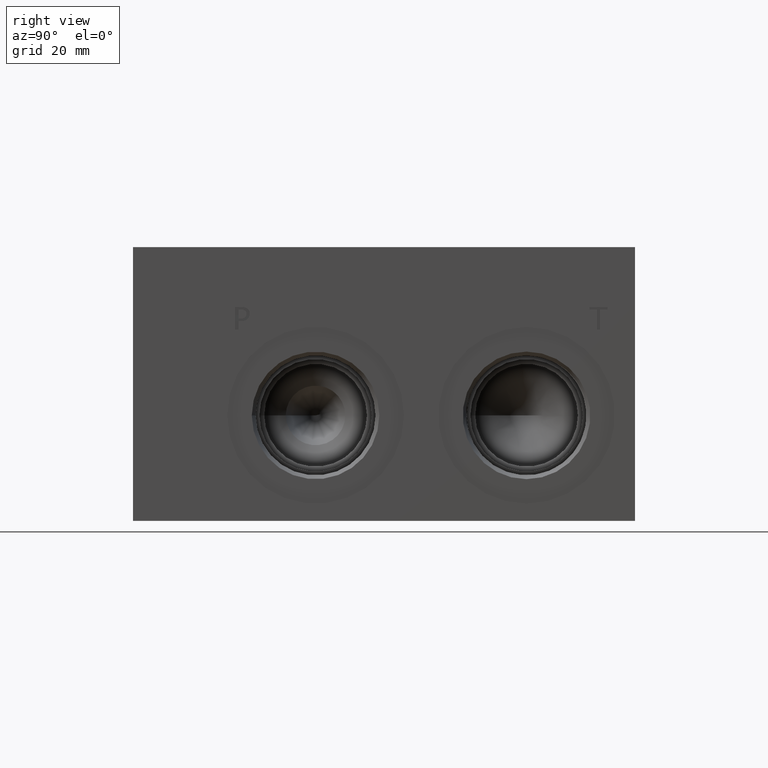
[diagram: clean part render]
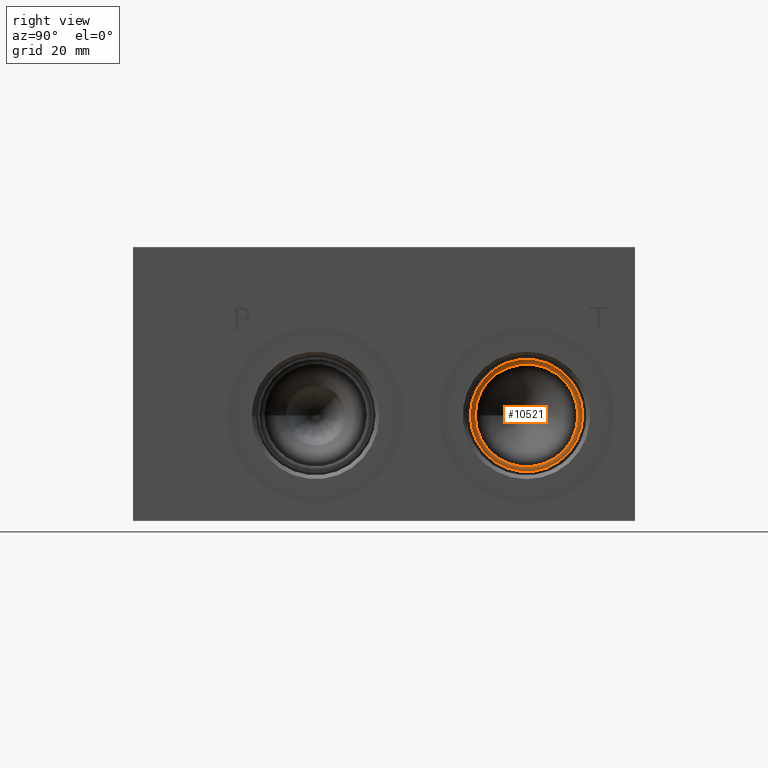
[diagram: same view with one face highlighted and labeled with its STEP entity id]
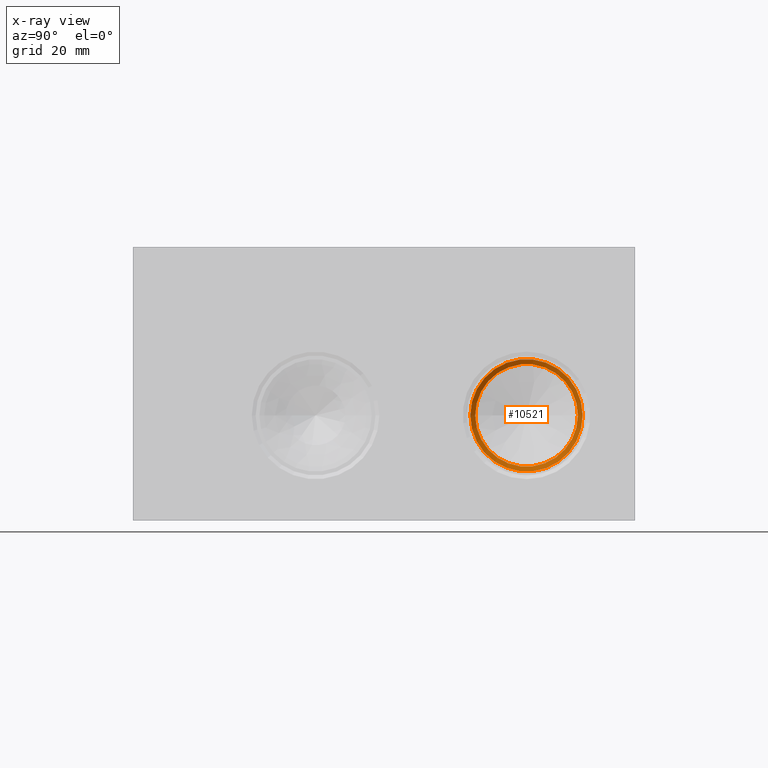
[diagram: x-ray of the same camera — body ghosted, the highlighted face saturated]
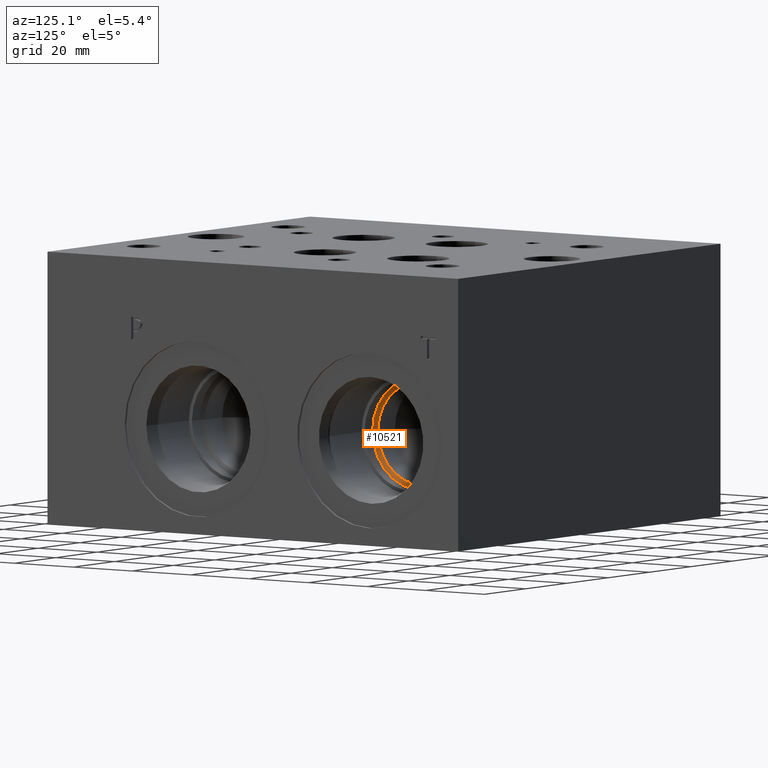
[diagram: same view with one face highlighted and labeled with its STEP entity id]
A machine part, right view. The second image highlights one B-rep face of the part: STEP entity #10521.
The next image is the same camera in x-ray: the body ghosted, the highlighted face saturated — about 0% of this face is hidden behind the body in this view.
A second angle (auxiliary view) of the same face is appended — the face is thin or edge-on in the first view.
In plain terms, the highlighted conical surface has half-angle 66 deg.
Its self-contained STEP definition (entity closure, byte-faithful):
#77=CONICAL_SURFACE('',#10975,7.81685,1.15191730631626);
#145=CIRCLE('',#10974,14.2875);
#146=CIRCLE('',#10976,15.6337);
#147=CIRCLE('',#10977,15.6337);
#1146=FACE_OUTER_BOUND('',#1738,.T.);
#1738=EDGE_LOOP('',(#8984,#8985,#8986,#8987,#8988));
#2778=LINE('',#17748,#3760);
#3760=VECTOR('',#12821,7.81685);
#4937=VERTEX_POINT('',#17741);
#4938=VERTEX_POINT('',#17745);
#4939=VERTEX_POINT('',#17746);
#6336=EDGE_CURVE('',#4937,#4937,#145,.T.);
#6338=EDGE_CURVE('',#4938,#4939,#146,.T.);
#6339=EDGE_CURVE('',#4939,#4937,#2778,.T.);
#6340=EDGE_CURVE('',#4939,#4938,#147,.T.);
#8984=ORIENTED_EDGE('',*,*,#6338,.T.);
#8985=ORIENTED_EDGE('',*,*,#6339,.T.);
#8986=ORIENTED_EDGE('',*,*,#6336,.T.);
#8987=ORIENTED_EDGE('',*,*,#6339,.F.);
#8988=ORIENTED_EDGE('',*,*,#6340,.T.);
#10521=ADVANCED_FACE('',(#1146),#77,.F.);
#10974=AXIS2_PLACEMENT_3D('',#17742,#12814,#12815);
#10975=AXIS2_PLACEMENT_3D('',#17744,#12817,#12818);
#10976=AXIS2_PLACEMENT_3D('',#17747,#12819,#12820);
#10977=AXIS2_PLACEMENT_3D('',#17749,#12822,#12823);
#12814=DIRECTION('center_axis',(-1.,0.,0.));
#12815=DIRECTION('ref_axis',(0.,1.,0.));
#12817=DIRECTION('center_axis',(1.,0.,0.));
#12818=DIRECTION('ref_axis',(0.,1.,0.));
#12819=DIRECTION('center_axis',(1.,0.,0.));
#12820=DIRECTION('ref_axis',(0.,1.,0.));
#12821=DIRECTION('',(-0.4067366430758,0.913545457642601,1.11877052057762E-16));
#12822=DIRECTION('center_axis',(1.,0.,0.));
#12823=DIRECTION('ref_axis',(0.,1.,0.));
#17741=CARTESIAN_POINT('',(102.600833143838,95.2373,29.3624));
#17742=CARTESIAN_POINT('Origin',(102.600833143838,109.5248,29.3624));
#17744=CARTESIAN_POINT('Origin',(99.719914151246,109.5248,29.3624));
#17745=CARTESIAN_POINT('',(103.2002,125.1585,29.3624));
#17746=CARTESIAN_POINT('',(103.2002,93.8911,29.3624));
#17747=CARTESIAN_POINT('Origin',(103.2002,109.5248,29.3624));
#17748=CARTESIAN_POINT('',(99.719914151246,101.70795,29.3624));
#17749=CARTESIAN_POINT('Origin',(103.2002,109.5248,29.3624));